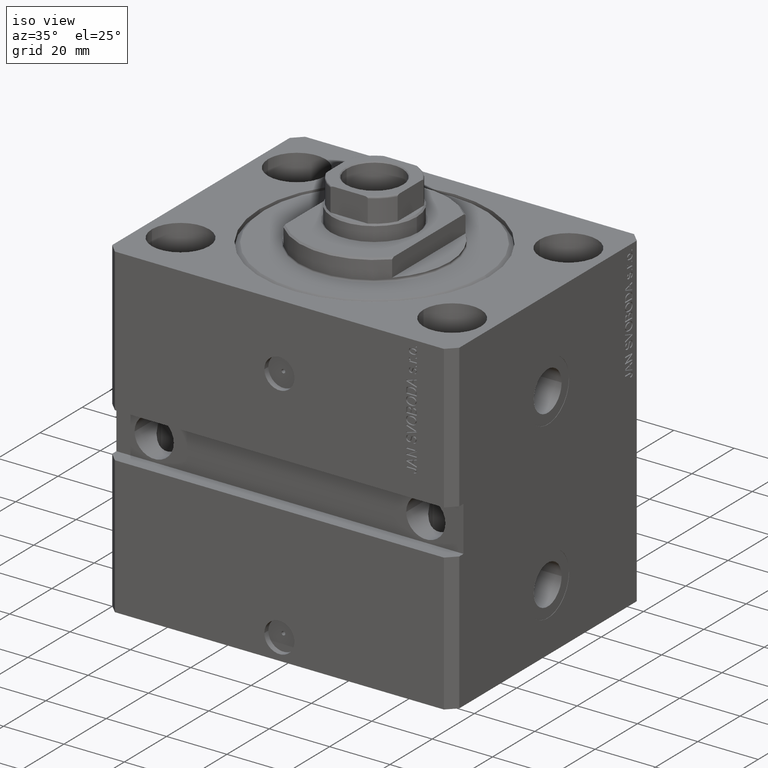
[diagram: clean part render]
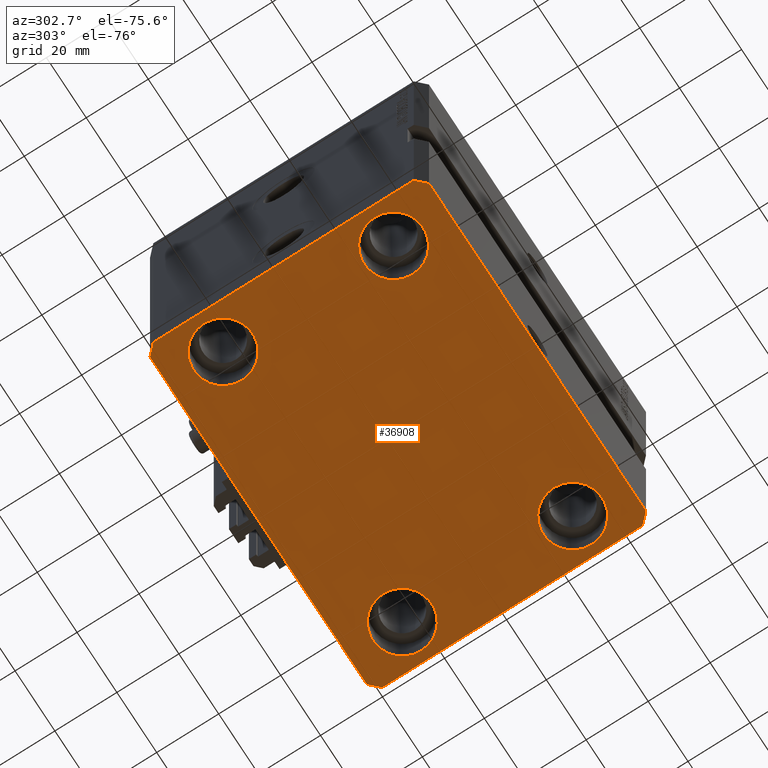
[diagram: tour spotlight — one face highlighted and labeled with its STEP entity id]
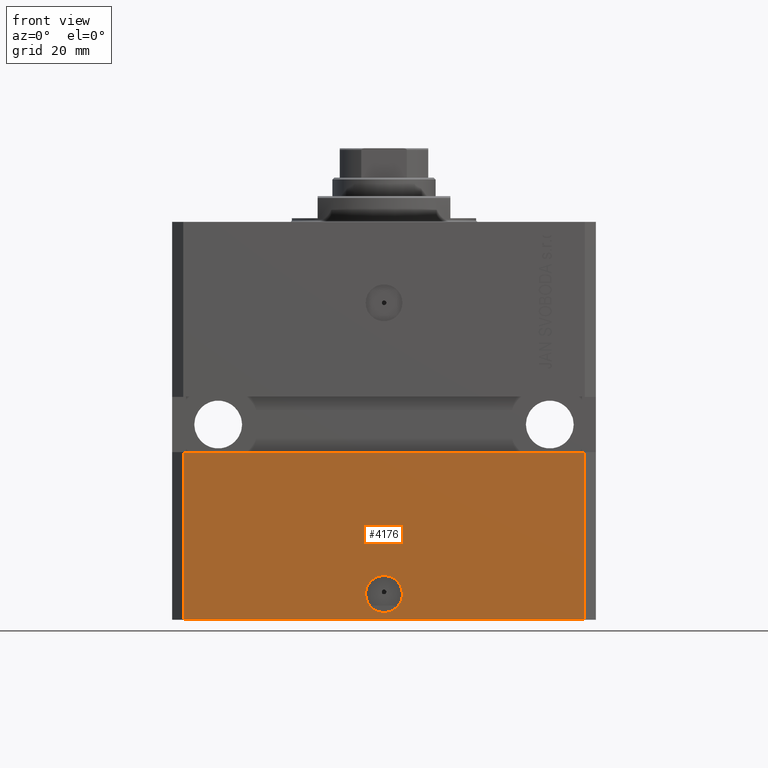
[diagram: tour spotlight — one face highlighted and labeled with its STEP entity id]
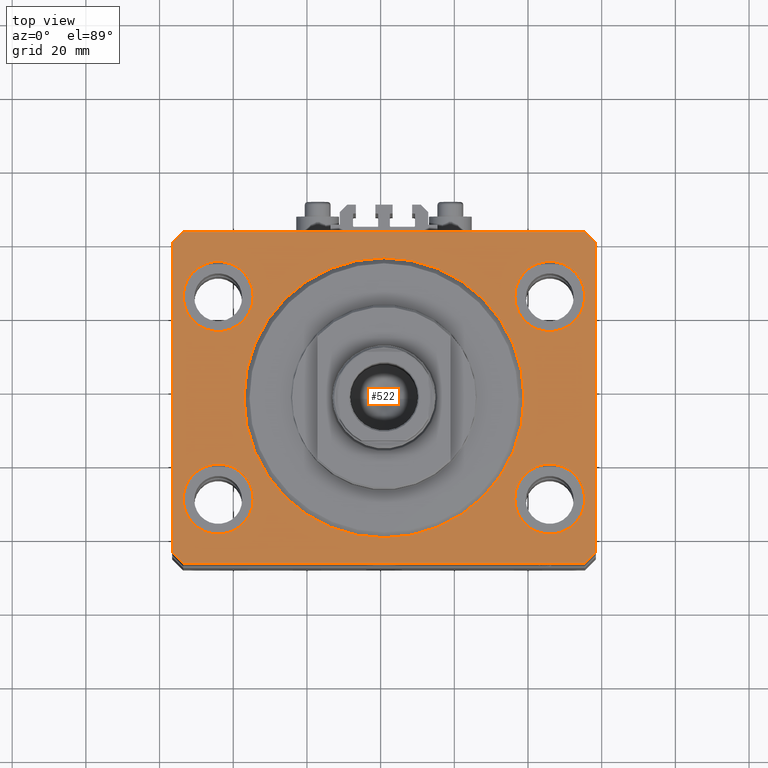
[diagram: tour spotlight — one face highlighted and labeled with its STEP entity id]
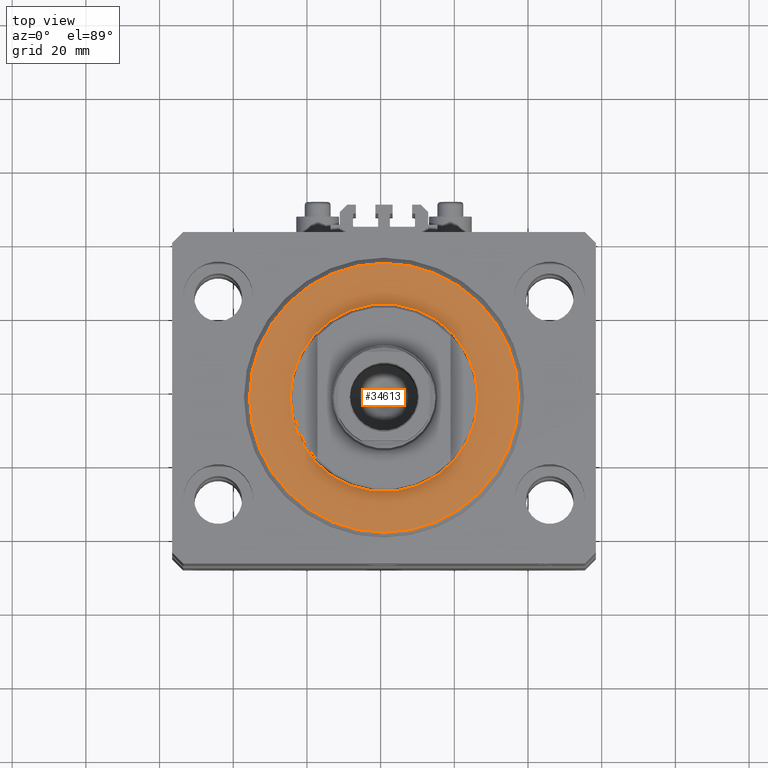
[diagram: tour spotlight — one face highlighted and labeled with its STEP entity id]
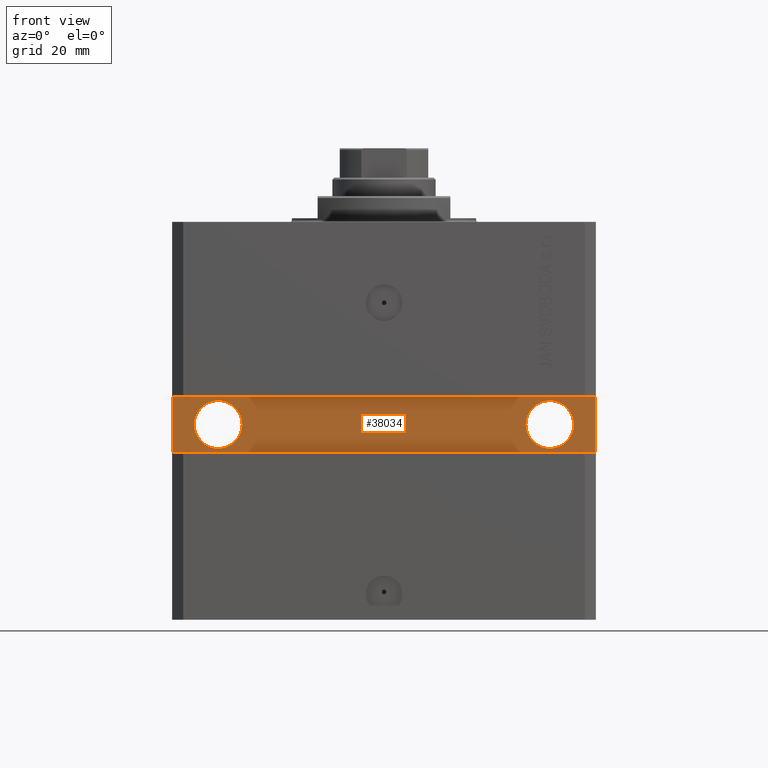
[diagram: tour spotlight — one face highlighted and labeled with its STEP entity id]
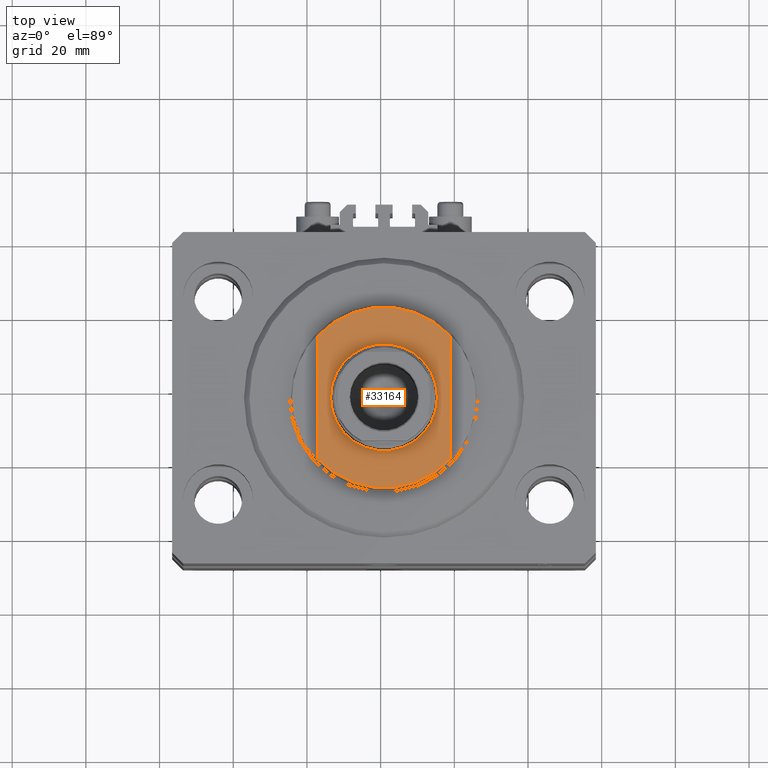
[diagram: tour spotlight — one face highlighted and labeled with its STEP entity id]
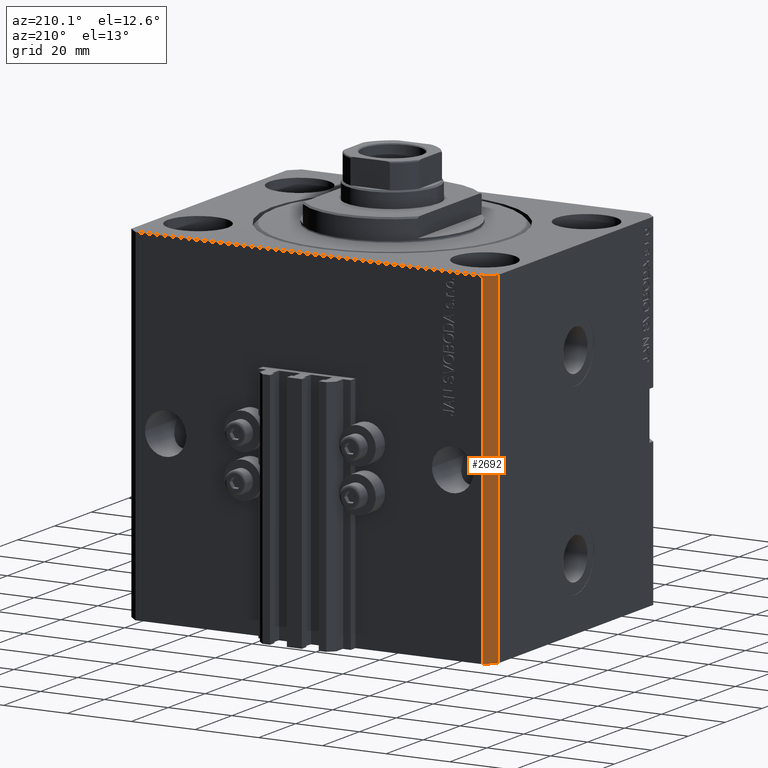
[diagram: tour spotlight — one face highlighted and labeled with its STEP entity id]
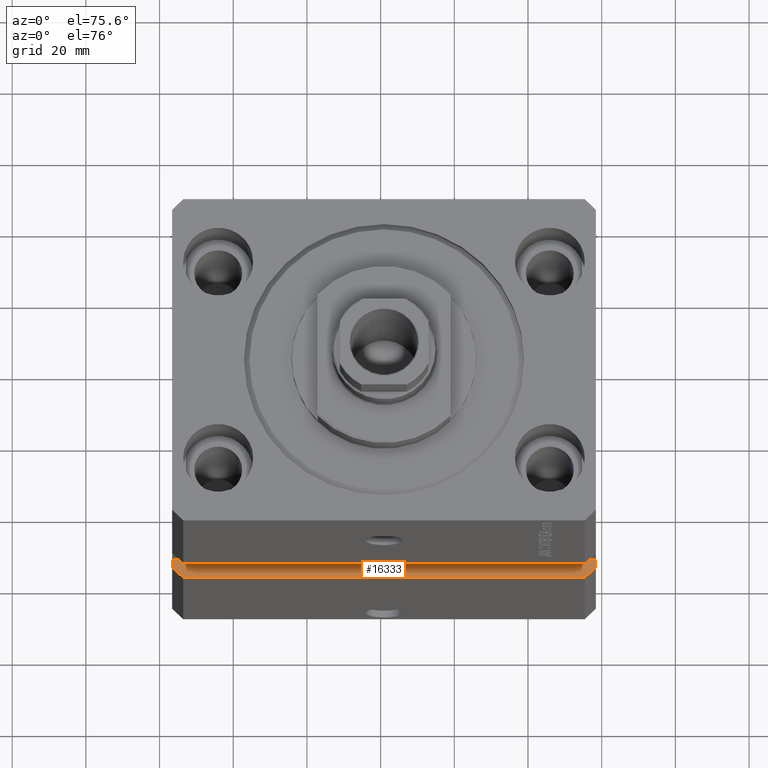
[diagram: tour spotlight — one face highlighted and labeled with its STEP entity id]
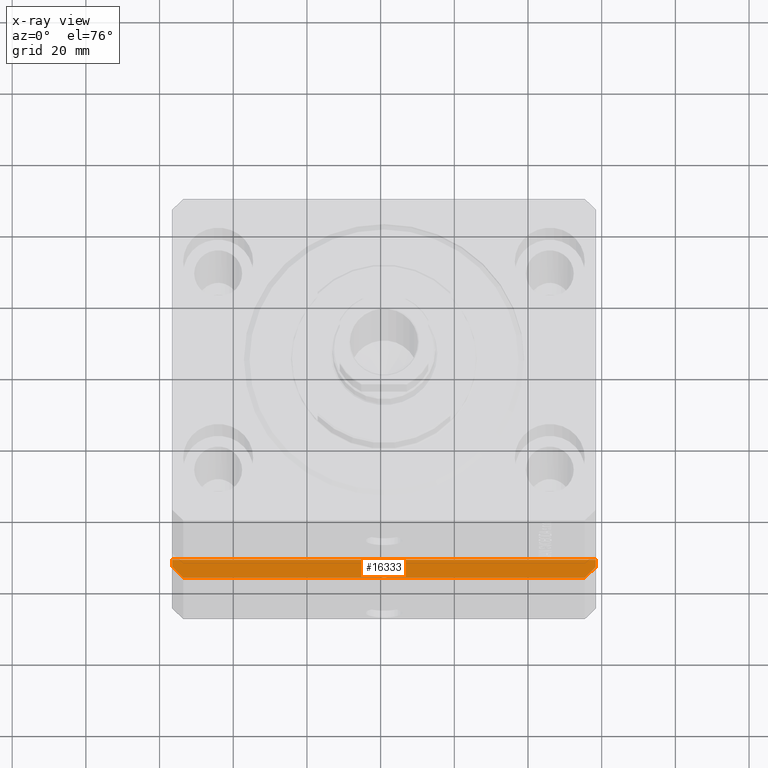
[diagram: x-ray of the same camera — body ghosted, this tour face saturated]
A machine part: a face-by-face anatomy tour. The part has 1123 B-rep faces; the first image is the clean iso view, then the 8 largest visible faces are spotlighted one at a time (largest first), each with its STEP entity span.

Face 1 — auxiliary view, entity #36908. In plain terms, the highlighted planar face has unit normal (0, 0, 1).
Definition (entity closure, byte-faithful):
#358 = VECTOR ( 'NONE', #16750, 1000.000000000000000 ) ;
#656 = LINE ( 'NONE', #7873, #20126 ) ;
#663 = CARTESIAN_POINT ( 'NONE',  ( -45.00000000000000000, -27.49999999999999645, -108.0000000000000000 ) ) ;
#935 = DIRECTION ( 'NONE',  ( -0.000000000000000000, -0.000000000000000000, 1.000000000000000000 ) ) ;
#2168 = CARTESIAN_POINT ( 'NONE',  ( 54.50000000000000000, 27.50000000000001776, -108.0000000000000000 ) ) ;
#2328 = CARTESIAN_POINT ( 'NONE',  ( 57.50000000000000711, -41.99999999999998579, -108.0000000000000000 ) ) ;
#2610 = CARTESIAN_POINT ( 'NONE',  ( 0.000000000000000000, 0.000000000000000000, -108.0000000000000000 ) ) ;
#2625 = EDGE_CURVE ( 'NONE', #11903, #31986, #41547, .T. ) ;
#2741 = LINE ( 'NONE', #44526, #20447 ) ;
#2826 = EDGE_CURVE ( 'NONE', #46505, #32514, #656, .T. ) ;
#2862 = FACE_OUTER_BOUND ( 'NONE', #7064, .T. ) ;
#3122 = DIRECTION ( 'NONE',  ( -0.000000000000000000, -0.000000000000000000, 1.000000000000000000 ) ) ;
#3204 = DIRECTION ( 'NONE',  ( -0.7071067811865483499, -0.7071067811865466846, 0.000000000000000000 ) ) ;
#3458 = ORIENTED_EDGE ( 'NONE', *, *, #9119, .T. ) ;
#3497 = DIRECTION ( 'NONE',  ( -0.7071067811865376918, 0.7071067811865574537, 0.000000000000000000 ) ) ;
#4487 = LINE ( 'NONE', #39539, #38608 ) ;
#4549 = CARTESIAN_POINT ( 'NONE',  ( 45.00000000000000000, -27.49999999999999645, -108.0000000000000000 ) ) ;
#4668 = CARTESIAN_POINT ( 'NONE',  ( -57.50000000000000711, -42.00000000000000711, -108.0000000000000000 ) ) ;
#5228 = CIRCLE ( 'NONE', #35416, 9.500000000000001776 ) ;
#5229 = CARTESIAN_POINT ( 'NONE',  ( 35.50000000000000000, -27.49999999999999645, -108.0000000000000000 ) ) ;
#5609 = CARTESIAN_POINT ( 'NONE',  ( 45.00000000000000000, 27.50000000000001776, -108.0000000000000000 ) ) ;
#5696 = VECTOR ( 'NONE', #17990, 1000.000000000000114 ) ;
#5895 = EDGE_CURVE ( 'NONE', #22153, #39718, #21448, .T. ) ;
#6258 = LINE ( 'NONE', #20976, #7057 ) ;
#7057 = VECTOR ( 'NONE', #43588, 1000.000000000000000 ) ;
#7064 = EDGE_LOOP ( 'NONE', ( #22331, #10845, #28032, #8652, #41761, #21823, #26002, #43721 ) ) ;
#7105 = FACE_BOUND ( 'NONE', #20083, .T. ) ;
#7349 = CARTESIAN_POINT ( 'NONE',  ( -45.00000000000000000, 27.50000000000000355, -108.0000000000000000 ) ) ;
#7873 = CARTESIAN_POINT ( 'NONE',  ( 54.50000000000058975, 45.00000000000002842, -108.0000000000000000 ) ) ;
#8652 = ORIENTED_EDGE ( 'NONE', *, *, #26316, .F. ) ;
#8862 = AXIS2_PLACEMENT_3D ( 'NONE', #2610, #21799, #36946 ) ;
#8893 = VECTOR ( 'NONE', #8994, 1000.000000000000000 ) ;
#8909 = EDGE_CURVE ( 'NONE', #40095, #11592, #4487, .T. ) ;
#8919 = DIRECTION ( 'NONE',  ( 1.000000000000000000, 0.000000000000000000, 0.000000000000000000 ) ) ;
#8994 = DIRECTION ( 'NONE',  ( 1.000000000000000000, 1.273191542001326317E-16, 0.000000000000000000 ) ) ;
#9119 = EDGE_CURVE ( 'NONE', #35168, #33995, #5228, .T. ) ;
#9240 = CARTESIAN_POINT ( 'NONE',  ( -54.50000000000000711, -45.00000000000000000, -108.0000000000000000 ) ) ;
#9383 = EDGE_LOOP ( 'NONE', ( #42927, #18831 ) ) ;
#9897 = ORIENTED_EDGE ( 'NONE', *, *, #21148, .T. ) ;
#10586 = FACE_BOUND ( 'NONE', #26195, .T. ) ;
#10845 = ORIENTED_EDGE ( 'NONE', *, *, #14788, .F. ) ;
#10996 = VECTOR ( 'NONE', #3204, 1000.000000000000000 ) ;
#11079 = CARTESIAN_POINT ( 'NONE',  ( -57.49999999999998579, 42.00000000000000711, -108.0000000000000000 ) ) ;
#11592 = VERTEX_POINT ( 'NONE', #22473 ) ;
#11903 = VERTEX_POINT ( 'NONE', #26813 ) ;
#12449 = DIRECTION ( 'NONE',  ( 6.443258625056715108E-15, 1.000000000000000000, 0.000000000000000000 ) ) ;
#14270 = EDGE_CURVE ( 'NONE', #33995, #35168, #22795, .T. ) ;
#14788 = EDGE_CURVE ( 'NONE', #11592, #46505, #2741, .T. ) ;
#14817 = AXIS2_PLACEMENT_3D ( 'NONE', #7349, #3122, #33482 ) ;
#15145 = LINE ( 'NONE', #25879, #10996 ) ;
#16070 = VERTEX_POINT ( 'NONE', #23038 ) ;
#16640 = CARTESIAN_POINT ( 'NONE',  ( 45.00000000000000000, -27.49999999999999645, -108.0000000000000000 ) ) ;
#16750 = DIRECTION ( 'NONE',  ( -2.478176394252581141E-16, -1.000000000000000000, 0.000000000000000000 ) ) ;
#17356 = ORIENTED_EDGE ( 'NONE', *, *, #27277, .T. ) ;
#17990 = DIRECTION ( 'NONE',  ( 0.7071067811865491270, -0.7071067811865459074, 0.000000000000000000 ) ) ;
#18831 = ORIENTED_EDGE ( 'NONE', *, *, #2625, .T. ) ;
#19869 = DIRECTION ( 'NONE',  ( 1.000000000000000000, 0.000000000000000000, 0.000000000000000000 ) ) ;
#20083 = EDGE_LOOP ( 'NONE', ( #9897, #17356 ) ) ;
#20126 = VECTOR ( 'NONE', #34509, 1000.000000000000000 ) ;
#20447 = VECTOR ( 'NONE', #3497, 999.9999999999998863 ) ;
#20801 = DIRECTION ( 'NONE',  ( -0.000000000000000000, -0.000000000000000000, 1.000000000000000000 ) ) ;
#20865 = DIRECTION ( 'NONE',  ( -0.000000000000000000, -0.000000000000000000, 1.000000000000000000 ) ) ;
#20972 = CARTESIAN_POINT ( 'NONE',  ( -57.49999999999998579, 42.00000000000000711, -108.0000000000000000 ) ) ;
#20976 = CARTESIAN_POINT ( 'NONE',  ( 54.50000000000000711, -44.99999999999998579, -108.0000000000000000 ) ) ;
#21148 = EDGE_CURVE ( 'NONE', #40748, #47189, #23839, .T. ) ;
#21448 = LINE ( 'NONE', #20972, #358 ) ;
#21547 = FACE_BOUND ( 'NONE', #26567, .T. ) ;
#21682 = AXIS2_PLACEMENT_3D ( 'NONE', #4549, #35392, #27950 ) ;
#21799 = DIRECTION ( 'NONE',  ( 0.000000000000000000, 0.000000000000000000, 1.000000000000000000 ) ) ;
#21823 = ORIENTED_EDGE ( 'NONE', *, *, #37768, .F. ) ;
#21944 = CARTESIAN_POINT ( 'NONE',  ( -54.50000000000000711, -45.00000000000000000, -108.0000000000000000 ) ) ;
#22153 = VERTEX_POINT ( 'NONE', #11079 ) ;
#22331 = ORIENTED_EDGE ( 'NONE', *, *, #2826, .F. ) ;
#22473 = CARTESIAN_POINT ( 'NONE',  ( 57.50000000000055422, 41.99999999999997868, -108.0000000000000000 ) ) ;
#22795 = CIRCLE ( 'NONE', #14817, 9.500000000000001776 ) ;
#23038 = CARTESIAN_POINT ( 'NONE',  ( -35.50000000000000000, -27.49999999999999645, -108.0000000000000000 ) ) ;
#23839 = CIRCLE ( 'NONE', #37307, 9.500000000000001776 ) ;
#23844 = DIRECTION ( 'NONE',  ( 1.000000000000000000, 0.000000000000000000, 0.000000000000000000 ) ) ;
#23963 = LINE ( 'NONE', #9240, #8893 ) ;
#24936 = VERTEX_POINT ( 'NONE', #42326 ) ;
#25282 = DIRECTION ( 'NONE',  ( -0.000000000000000000, -0.000000000000000000, 1.000000000000000000 ) ) ;
#25795 = FACE_BOUND ( 'NONE', #9383, .T. ) ;
#25879 = CARTESIAN_POINT ( 'NONE',  ( -54.49999999999999289, 45.00000000000000000, -108.0000000000000000 ) ) ;
#26002 = ORIENTED_EDGE ( 'NONE', *, *, #5895, .F. ) ;
#26195 = EDGE_LOOP ( 'NONE', ( #47186, #41980 ) ) ;
#26316 = EDGE_CURVE ( 'NONE', #24936, #40095, #6258, .T. ) ;
#26466 = AXIS2_PLACEMENT_3D ( 'NONE', #663, #28048, #23844 ) ;
#26567 = EDGE_LOOP ( 'NONE', ( #3458, #29518 ) ) ;
#26597 = AXIS2_PLACEMENT_3D ( 'NONE', #34144, #30408, #33403 ) ;
#26712 = EDGE_CURVE ( 'NONE', #32514, #22153, #15145, .T. ) ;
#26813 = CARTESIAN_POINT ( 'NONE',  ( 54.50000000000000000, -27.49999999999999645, -108.0000000000000000 ) ) ;
#27277 = EDGE_CURVE ( 'NONE', #47189, #40748, #42024, .T. ) ;
#27950 = DIRECTION ( 'NONE',  ( 1.000000000000000000, 0.000000000000000000, 0.000000000000000000 ) ) ;
#28032 = ORIENTED_EDGE ( 'NONE', *, *, #8909, .F. ) ;
#28048 = DIRECTION ( 'NONE',  ( -0.000000000000000000, -0.000000000000000000, 1.000000000000000000 ) ) ;
#28478 = CARTESIAN_POINT ( 'NONE',  ( 35.50000000000000000, 27.50000000000001776, -108.0000000000000000 ) ) ;
#28553 = AXIS2_PLACEMENT_3D ( 'NONE', #5609, #20801, #43656 ) ;
#29518 = ORIENTED_EDGE ( 'NONE', *, *, #14270, .T. ) ;
#29780 = CARTESIAN_POINT ( 'NONE',  ( 54.50000000000058975, 45.00000000000002842, -108.0000000000000000 ) ) ;
#30408 = DIRECTION ( 'NONE',  ( -0.000000000000000000, -0.000000000000000000, 1.000000000000000000 ) ) ;
#30453 = AXIS2_PLACEMENT_3D ( 'NONE', #16640, #20865, #8919 ) ;
#30957 = CARTESIAN_POINT ( 'NONE',  ( -54.50000000000000000, 27.50000000000000355, -108.0000000000000000 ) ) ;
#31986 = VERTEX_POINT ( 'NONE', #5229 ) ;
#32483 = DIRECTION ( 'NONE',  ( 1.000000000000000000, 0.000000000000000000, 0.000000000000000000 ) ) ;
#32514 = VERTEX_POINT ( 'NONE', #38639 ) ;
#33137 = CARTESIAN_POINT ( 'NONE',  ( -54.50000000000000000, -27.49999999999999645, -108.0000000000000000 ) ) ;
#33403 = DIRECTION ( 'NONE',  ( 1.000000000000000000, 0.000000000000000000, 0.000000000000000000 ) ) ;
#33482 = DIRECTION ( 'NONE',  ( 1.000000000000000000, 0.000000000000000000, 0.000000000000000000 ) ) ;
#33995 = VERTEX_POINT ( 'NONE', #36078 ) ;
#34144 = CARTESIAN_POINT ( 'NONE',  ( -45.00000000000000000, -27.49999999999999645, -108.0000000000000000 ) ) ;
#34509 = DIRECTION ( 'NONE',  ( -1.000000000000000000, -2.546383084002639322E-16, 0.000000000000000000 ) ) ;
#34662 = VERTEX_POINT ( 'NONE', #21944 ) ;
#35168 = VERTEX_POINT ( 'NONE', #30957 ) ;
#35392 = DIRECTION ( 'NONE',  ( -0.000000000000000000, -0.000000000000000000, 1.000000000000000000 ) ) ;
#35416 = AXIS2_PLACEMENT_3D ( 'NONE', #42483, #935, #19869 ) ;
#35430 = LINE ( 'NONE', #40349, #5696 ) ;
#35984 = CIRCLE ( 'NONE', #26466, 9.500000000000001776 ) ;
#36078 = CARTESIAN_POINT ( 'NONE',  ( -35.50000000000000000, 27.50000000000000355, -108.0000000000000000 ) ) ;
#36749 = CIRCLE ( 'NONE', #21682, 9.500000000000001776 ) ;
#36908 = ADVANCED_FACE ( 'NONE', ( #10586, #25795, #7105, #21547, #2862 ), #37450, .F. ) ;
#36946 = DIRECTION ( 'NONE',  ( 1.000000000000000000, 0.000000000000000000, -0.000000000000000000 ) ) ;
#37307 = AXIS2_PLACEMENT_3D ( 'NONE', #47392, #25282, #32483 ) ;
#37450 = PLANE ( 'NONE',  #8862 ) ;
#37768 = EDGE_CURVE ( 'NONE', #39718, #34662, #35430, .T. ) ;
#38141 = EDGE_CURVE ( 'NONE', #34662, #24936, #23963, .T. ) ;
#38608 = VECTOR ( 'NONE', #12449, 1000.000000000000000 ) ;
#38639 = CARTESIAN_POINT ( 'NONE',  ( -54.49999999999999289, 45.00000000000000000, -108.0000000000000000 ) ) ;
#39539 = CARTESIAN_POINT ( 'NONE',  ( 57.50000000000000711, -41.99999999999998579, -108.0000000000000000 ) ) ;
#39718 = VERTEX_POINT ( 'NONE', #4668 ) ;
#40072 = CIRCLE ( 'NONE', #26597, 9.500000000000001776 ) ;
#40095 = VERTEX_POINT ( 'NONE', #2328 ) ;
#40299 = EDGE_CURVE ( 'NONE', #31986, #11903, #36749, .T. ) ;
#40349 = CARTESIAN_POINT ( 'NONE',  ( -57.50000000000000711, -42.00000000000000711, -108.0000000000000000 ) ) ;
#40520 = EDGE_CURVE ( 'NONE', #16070, #47056, #35984, .T. ) ;
#40748 = VERTEX_POINT ( 'NONE', #28478 ) ;
#41547 = CIRCLE ( 'NONE', #30453, 9.500000000000001776 ) ;
#41761 = ORIENTED_EDGE ( 'NONE', *, *, #38141, .F. ) ;
#41980 = ORIENTED_EDGE ( 'NONE', *, *, #40520, .T. ) ;
#42024 = CIRCLE ( 'NONE', #28553, 9.500000000000001776 ) ;
#42326 = CARTESIAN_POINT ( 'NONE',  ( 54.50000000000000711, -44.99999999999998579, -108.0000000000000000 ) ) ;
#42483 = CARTESIAN_POINT ( 'NONE',  ( -45.00000000000000000, 27.50000000000000355, -108.0000000000000000 ) ) ;
#42927 = ORIENTED_EDGE ( 'NONE', *, *, #40299, .T. ) ;
#43588 = DIRECTION ( 'NONE',  ( 0.7071067811865483499, 0.7071067811865466846, 0.000000000000000000 ) ) ;
#43656 = DIRECTION ( 'NONE',  ( 1.000000000000000000, 0.000000000000000000, 0.000000000000000000 ) ) ;
#43721 = ORIENTED_EDGE ( 'NONE', *, *, #26712, .F. ) ;
#44526 = CARTESIAN_POINT ( 'NONE',  ( 57.50000000000055422, 41.99999999999997868, -108.0000000000000000 ) ) ;
#46505 = VERTEX_POINT ( 'NONE', #29780 ) ;
#47056 = VERTEX_POINT ( 'NONE', #33137 ) ;
#47186 = ORIENTED_EDGE ( 'NONE', *, *, #48011, .T. ) ;
#47189 = VERTEX_POINT ( 'NONE', #2168 ) ;
#47392 = CARTESIAN_POINT ( 'NONE',  ( 45.00000000000000000, 27.50000000000001776, -108.0000000000000000 ) ) ;
#48011 = EDGE_CURVE ( 'NONE', #47056, #16070, #40072, .T. ) ;

Face 2 — front view, entity #4176. In plain terms, the highlighted planar face has unit normal (0, -1, 0).
Definition (entity closure, byte-faithful):
#2139 = VECTOR ( 'NONE', #24492, 1000.000000000000000 ) ;
#3583 = VECTOR ( 'NONE', #45058, 1000.000000000000000 ) ;
#4176 = ADVANCED_FACE ( 'NONE', ( #12870, #30868 ), #42291, .T. ) ;
#4806 = VERTEX_POINT ( 'NONE', #34913 ) ;
#6519 = EDGE_LOOP ( 'NONE', ( #25581, #34971, #16861, #27310 ) ) ;
#6565 = ORIENTED_EDGE ( 'NONE', *, *, #47234, .F. ) ;
#7966 = CARTESIAN_POINT ( 'NONE',  ( -54.50000000000000711, -45.00000000000000000, -108.0000000000000000 ) ) ;
#8893 = VECTOR ( 'NONE', #8994, 1000.000000000000000 ) ;
#8994 = DIRECTION ( 'NONE',  ( 1.000000000000000000, 1.273191542001326317E-16, 0.000000000000000000 ) ) ;
#9240 = CARTESIAN_POINT ( 'NONE',  ( -54.50000000000000711, -45.00000000000000000, -108.0000000000000000 ) ) ;
#9642 = DIRECTION ( 'NONE',  ( 1.000000000000000000, 0.000000000000000000, 0.000000000000000000 ) ) ;
#12236 = AXIS2_PLACEMENT_3D ( 'NONE', #7966, #46934, #20598 ) ;
#12530 = CARTESIAN_POINT ( 'NONE',  ( -57.50000000000000711, -45.00000000000000000, -62.50000000000000000 ) ) ;
#12870 = FACE_BOUND ( 'NONE', #36823, .T. ) ;
#14281 = VERTEX_POINT ( 'NONE', #45147 ) ;
#14645 = VERTEX_POINT ( 'NONE', #38372 ) ;
#15052 = AXIS2_PLACEMENT_3D ( 'NONE', #30988, #35693, #16555 ) ;
#16555 = DIRECTION ( 'NONE',  ( 1.000000000000000000, 0.000000000000000000, 0.000000000000000000 ) ) ;
#16861 = ORIENTED_EDGE ( 'NONE', *, *, #38141, .T. ) ;
#18365 = DIRECTION ( 'NONE',  ( 0.000000000000000000, 0.000000000000000000, 1.000000000000000000 ) ) ;
#20202 = CIRCLE ( 'NONE', #47952, 5.000000000000006217 ) ;
#20598 = DIRECTION ( 'NONE',  ( 1.000000000000000000, 1.273191542001326317E-16, 0.000000000000000000 ) ) ;
#21944 = CARTESIAN_POINT ( 'NONE',  ( -54.50000000000000711, -45.00000000000000000, -108.0000000000000000 ) ) ;
#23824 = CIRCLE ( 'NONE', #15052, 5.000000000000006217 ) ;
#23865 = EDGE_CURVE ( 'NONE', #14645, #14281, #32170, .T. ) ;
#23963 = LINE ( 'NONE', #9240, #8893 ) ;
#24492 = DIRECTION ( 'NONE',  ( 1.000000000000000000, 1.206764157201257045E-16, 0.000000000000000000 ) ) ;
#24936 = VERTEX_POINT ( 'NONE', #42326 ) ;
#25577 = DIRECTION ( 'NONE',  ( 1.176083712526788232E-16, -1.000000000000000000, 0.000000000000000000 ) ) ;
#25581 = ORIENTED_EDGE ( 'NONE', *, *, #23865, .F. ) ;
#26995 = VECTOR ( 'NONE', #18365, 1000.000000000000000 ) ;
#27310 = ORIENTED_EDGE ( 'NONE', *, *, #49140, .T. ) ;
#27953 = VERTEX_POINT ( 'NONE', #47441 ) ;
#28681 = EDGE_CURVE ( 'NONE', #34662, #14645, #48920, .T. ) ;
#29339 = EDGE_CURVE ( 'NONE', #4806, #27953, #23824, .T. ) ;
#29547 = CARTESIAN_POINT ( 'NONE',  ( 5.729361939005967538E-15, -44.99999999999999289, -100.9999999999999858 ) ) ;
#29670 = LINE ( 'NONE', #40331, #3583 ) ;
#30868 = FACE_OUTER_BOUND ( 'NONE', #6519, .T. ) ;
#30988 = CARTESIAN_POINT ( 'NONE',  ( 5.729361939005967538E-15, -44.99999999999999289, -100.9999999999999858 ) ) ;
#32170 = LINE ( 'NONE', #12530, #2139 ) ;
#34241 = ORIENTED_EDGE ( 'NONE', *, *, #29339, .F. ) ;
#34662 = VERTEX_POINT ( 'NONE', #21944 ) ;
#34913 = CARTESIAN_POINT ( 'NONE',  ( -5.000000000000000000, -44.99999999999999289, -100.9999999999999858 ) ) ;
#34971 = ORIENTED_EDGE ( 'NONE', *, *, #28681, .F. ) ;
#35693 = DIRECTION ( 'NONE',  ( 1.176083712526788232E-16, -1.000000000000000000, 0.000000000000000000 ) ) ;
#36823 = EDGE_LOOP ( 'NONE', ( #6565, #34241 ) ) ;
#38141 = EDGE_CURVE ( 'NONE', #34662, #24936, #23963, .T. ) ;
#38372 = CARTESIAN_POINT ( 'NONE',  ( -54.50000000000000711, -45.00000000000000000, -62.50000000000000000 ) ) ;
#40331 = CARTESIAN_POINT ( 'NONE',  ( 54.50000000000000711, -44.99999999999998579, -108.0000000000000000 ) ) ;
#42291 = PLANE ( 'NONE',  #12236 ) ;
#42326 = CARTESIAN_POINT ( 'NONE',  ( 54.50000000000000711, -44.99999999999998579, -108.0000000000000000 ) ) ;
#44937 = CARTESIAN_POINT ( 'NONE',  ( -54.50000000000000711, -45.00000000000000000, -108.0000000000000000 ) ) ;
#45058 = DIRECTION ( 'NONE',  ( 0.000000000000000000, 0.000000000000000000, 1.000000000000000000 ) ) ;
#45147 = CARTESIAN_POINT ( 'NONE',  ( 54.49999999999997868, -44.99999999999998579, -62.50000000000000000 ) ) ;
#46934 = DIRECTION ( 'NONE',  ( 1.273191542001326317E-16, -1.000000000000000000, 0.000000000000000000 ) ) ;
#47234 = EDGE_CURVE ( 'NONE', #27953, #4806, #20202, .T. ) ;
#47441 = CARTESIAN_POINT ( 'NONE',  ( 5.000000000000012434, -44.99999999999999289, -100.9999999999999858 ) ) ;
#47952 = AXIS2_PLACEMENT_3D ( 'NONE', #29547, #25577, #9642 ) ;
#48920 = LINE ( 'NONE', #44937, #26995 ) ;
#49140 = EDGE_CURVE ( 'NONE', #24936, #14281, #29670, .T. ) ;

Face 3 — top view, entity #522. In plain terms, the highlighted planar face has unit normal (0, 0, 1).
Definition (entity closure, byte-faithful):
#35 = CARTESIAN_POINT ( 'NONE',  ( -45.00000000000000000, -27.49999999999999645, 0.000000000000000000 ) ) ;
#201 = AXIS2_PLACEMENT_3D ( 'NONE', #7631, #33523, #34260 ) ;
#522 = ADVANCED_FACE ( 'NONE', ( #35974, #25534, #47639, #21540, #39936, #32976 ), #40411, .T. ) ;
#654 = CARTESIAN_POINT ( 'NONE',  ( -54.49999999999999289, 45.00000000000000000, 0.000000000000000000 ) ) ;
#832 = LINE ( 'NONE', #4066, #47414 ) ;
#971 = VERTEX_POINT ( 'NONE', #14501 ) ;
#1199 = DIRECTION ( 'NONE',  ( 0.000000000000000000, 0.000000000000000000, 1.000000000000000000 ) ) ;
#1389 = LINE ( 'NONE', #654, #39243 ) ;
#1715 = VECTOR ( 'NONE', #46128, 999.9999999999998863 ) ;
#1768 = EDGE_CURVE ( 'NONE', #37778, #30025, #32781, .T. ) ;
#1872 = CARTESIAN_POINT ( 'NONE',  ( -54.50000000000000711, -45.00000000000000000, 0.000000000000000000 ) ) ;
#1943 = ORIENTED_EDGE ( 'NONE', *, *, #36343, .F. ) ;
#2482 = DIRECTION ( 'NONE',  ( 0.000000000000000000, 0.000000000000000000, 1.000000000000000000 ) ) ;
#2776 = DIRECTION ( 'NONE',  ( 0.000000000000000000, 0.000000000000000000, 1.000000000000000000 ) ) ;
#2939 = LINE ( 'NONE', #36770, #5996 ) ;
#3069 = AXIS2_PLACEMENT_3D ( 'NONE', #38883, #47312, #31186 ) ;
#3168 = CARTESIAN_POINT ( 'NONE',  ( 57.50000000000055422, 41.99999999999997868, 0.000000000000000000 ) ) ;
#3347 = DIRECTION ( 'NONE',  ( 1.000000000000000000, 0.000000000000000000, 0.000000000000000000 ) ) ;
#3823 = DIRECTION ( 'NONE',  ( 1.000000000000000000, 1.273191542001326317E-16, 0.000000000000000000 ) ) ;
#4010 = CARTESIAN_POINT ( 'NONE',  ( -38.00000000000000000, 4.653657836759941941E-15, 0.000000000000000000 ) ) ;
#4066 = CARTESIAN_POINT ( 'NONE',  ( -54.50000000000000711, -45.00000000000000000, 0.000000000000000000 ) ) ;
#4129 = CARTESIAN_POINT ( 'NONE',  ( 54.50000000000000711, -44.99999999999998579, 0.000000000000000000 ) ) ;
#4388 = CARTESIAN_POINT ( 'NONE',  ( 45.00000000000000000, 27.50000000000001776, 0.000000000000000000 ) ) ;
#4490 = VERTEX_POINT ( 'NONE', #13540 ) ;
#4922 = VERTEX_POINT ( 'NONE', #25182 ) ;
#5795 = CARTESIAN_POINT ( 'NONE',  ( -57.50000000000000711, -42.00000000000000711, 0.000000000000000000 ) ) ;
#5839 = VERTEX_POINT ( 'NONE', #19999 ) ;
#5996 = VECTOR ( 'NONE', #17884, 1000.000000000000000 ) ;
#7024 = DIRECTION ( 'NONE',  ( 0.000000000000000000, 0.000000000000000000, 1.000000000000000000 ) ) ;
#7050 = ORIENTED_EDGE ( 'NONE', *, *, #42740, .T. ) ;
#7085 = EDGE_CURVE ( 'NONE', #33848, #9282, #14673, .T. ) ;
#7146 = ORIENTED_EDGE ( 'NONE', *, *, #19235, .T. ) ;
#7631 = CARTESIAN_POINT ( 'NONE',  ( 45.00000000000000000, -27.49999999999999645, 0.000000000000000000 ) ) ;
#7839 = AXIS2_PLACEMENT_3D ( 'NONE', #35, #2776, #18975 ) ;
#8612 = EDGE_LOOP ( 'NONE', ( #1943, #37219 ) ) ;
#8958 = EDGE_CURVE ( 'NONE', #31166, #13113, #2939, .T. ) ;
#9159 = ORIENTED_EDGE ( 'NONE', *, *, #34217, .F. ) ;
#9282 = VERTEX_POINT ( 'NONE', #18584 ) ;
#9312 = AXIS2_PLACEMENT_3D ( 'NONE', #41096, #7024, #37371 ) ;
#9444 = VECTOR ( 'NONE', #41699, 1000.000000000000000 ) ;
#9999 = DIRECTION ( 'NONE',  ( 0.7071067811865491270, -0.7071067811865459074, 0.000000000000000000 ) ) ;
#10098 = VERTEX_POINT ( 'NONE', #45291 ) ;
#10194 = CARTESIAN_POINT ( 'NONE',  ( 35.50000000000000000, 27.50000000000001776, 0.000000000000000000 ) ) ;
#10874 = ORIENTED_EDGE ( 'NONE', *, *, #8958, .T. ) ;
#10971 = EDGE_CURVE ( 'NONE', #971, #25952, #25999, .T. ) ;
#11194 = CIRCLE ( 'NONE', #12024, 9.500000000000001776 ) ;
#12024 = AXIS2_PLACEMENT_3D ( 'NONE', #24455, #2482, #13456 ) ;
#13113 = VERTEX_POINT ( 'NONE', #35791 ) ;
#13456 = DIRECTION ( 'NONE',  ( 1.000000000000000000, 0.000000000000000000, 0.000000000000000000 ) ) ;
#13540 = CARTESIAN_POINT ( 'NONE',  ( -54.50000000000000000, -27.49999999999999645, 0.000000000000000000 ) ) ;
#13735 = VERTEX_POINT ( 'NONE', #24154 ) ;
#14501 = CARTESIAN_POINT ( 'NONE',  ( 54.50000000000000000, 27.50000000000001776, 0.000000000000000000 ) ) ;
#14673 = CIRCLE ( 'NONE', #23449, 38.00000000000000000 ) ;
#14839 = ORIENTED_EDGE ( 'NONE', *, *, #19346, .F. ) ;
#15053 = DIRECTION ( 'NONE',  ( 6.443258625056715108E-15, 1.000000000000000000, 0.000000000000000000 ) ) ;
#15136 = EDGE_CURVE ( 'NONE', #9282, #33848, #43452, .T. ) ;
#15406 = EDGE_CURVE ( 'NONE', #25952, #971, #48196, .T. ) ;
#15535 = CARTESIAN_POINT ( 'NONE',  ( 57.50000000000000711, -41.99999999999998579, 0.000000000000000000 ) ) ;
#16881 = DIRECTION ( 'NONE',  ( 1.000000000000000000, 0.000000000000000000, 0.000000000000000000 ) ) ;
#17730 = ORIENTED_EDGE ( 'NONE', *, *, #18671, .T. ) ;
#17761 = LINE ( 'NONE', #28969, #45377 ) ;
#17884 = DIRECTION ( 'NONE',  ( -1.000000000000000000, -2.546383084002639322E-16, 0.000000000000000000 ) ) ;
#18057 = DIRECTION ( 'NONE',  ( 0.000000000000000000, 0.000000000000000000, 1.000000000000000000 ) ) ;
#18584 = CARTESIAN_POINT ( 'NONE',  ( 38.00000000000000000, 0.000000000000000000, 0.000000000000000000 ) ) ;
#18671 = EDGE_CURVE ( 'NONE', #32391, #5839, #34004, .T. ) ;
#18975 = DIRECTION ( 'NONE',  ( 1.000000000000000000, 0.000000000000000000, 0.000000000000000000 ) ) ;
#19039 = LINE ( 'NONE', #15535, #27346 ) ;
#19074 = EDGE_LOOP ( 'NONE', ( #10874, #46963, #20551, #7146, #44294, #17730, #7050, #33963 ) ) ;
#19235 = EDGE_CURVE ( 'NONE', #10098, #47604, #36143, .T. ) ;
#19297 = LINE ( 'NONE', #31228, #1715 ) ;
#19346 = EDGE_CURVE ( 'NONE', #4490, #4922, #32465, .T. ) ;
#19999 = CARTESIAN_POINT ( 'NONE',  ( 57.50000000000000711, -41.99999999999998579, 0.000000000000000000 ) ) ;
#20551 = ORIENTED_EDGE ( 'NONE', *, *, #37227, .T. ) ;
#21514 = CARTESIAN_POINT ( 'NONE',  ( 54.50000000000000711, -44.99999999999998579, 0.000000000000000000 ) ) ;
#21540 = FACE_BOUND ( 'NONE', #38380, .T. ) ;
#23449 = AXIS2_PLACEMENT_3D ( 'NONE', #40289, #47288, #44271 ) ;
#23721 = EDGE_CURVE ( 'NONE', #47604, #32391, #832, .T. ) ;
#23833 = DIRECTION ( 'NONE',  ( 0.000000000000000000, 0.000000000000000000, 1.000000000000000000 ) ) ;
#24154 = CARTESIAN_POINT ( 'NONE',  ( 35.50000000000000000, -27.49999999999999645, 0.000000000000000000 ) ) ;
#24455 = CARTESIAN_POINT ( 'NONE',  ( 45.00000000000000000, -27.49999999999999645, 0.000000000000000000 ) ) ;
#25182 = CARTESIAN_POINT ( 'NONE',  ( -35.50000000000000000, -27.49999999999999645, 0.000000000000000000 ) ) ;
#25460 = CIRCLE ( 'NONE', #31806, 9.500000000000001776 ) ;
#25534 = FACE_BOUND ( 'NONE', #8612, .T. ) ;
#25952 = VERTEX_POINT ( 'NONE', #10194 ) ;
#25999 = CIRCLE ( 'NONE', #35486, 9.500000000000001776 ) ;
#26167 = VECTOR ( 'NONE', #9999, 1000.000000000000114 ) ;
#26512 = DIRECTION ( 'NONE',  ( 0.000000000000000000, 0.000000000000000000, 1.000000000000000000 ) ) ;
#27346 = VECTOR ( 'NONE', #15053, 1000.000000000000000 ) ;
#28097 = DIRECTION ( 'NONE',  ( 1.000000000000000000, 0.000000000000000000, 0.000000000000000000 ) ) ;
#28969 = CARTESIAN_POINT ( 'NONE',  ( -57.49999999999998579, 42.00000000000000711, 0.000000000000000000 ) ) ;
#29959 = ORIENTED_EDGE ( 'NONE', *, *, #15406, .F. ) ;
#30025 = VERTEX_POINT ( 'NONE', #32747 ) ;
#30424 = CIRCLE ( 'NONE', #201, 9.500000000000001776 ) ;
#30741 = ORIENTED_EDGE ( 'NONE', *, *, #31327, .F. ) ;
#31166 = VERTEX_POINT ( 'NONE', #47184 ) ;
#31186 = DIRECTION ( 'NONE',  ( 1.000000000000000000, 0.000000000000000000, 0.000000000000000000 ) ) ;
#31195 = CARTESIAN_POINT ( 'NONE',  ( -57.49999999999998579, 42.00000000000000711, 0.000000000000000000 ) ) ;
#31228 = CARTESIAN_POINT ( 'NONE',  ( 57.50000000000055422, 41.99999999999997868, 0.000000000000000000 ) ) ;
#31327 = EDGE_CURVE ( 'NONE', #30025, #37778, #49144, .T. ) ;
#31553 = DIRECTION ( 'NONE',  ( 0.000000000000000000, 0.000000000000000000, 1.000000000000000000 ) ) ;
#31806 = AXIS2_PLACEMENT_3D ( 'NONE', #42747, #1199, #28097 ) ;
#31998 = DIRECTION ( 'NONE',  ( -0.7071067811865483499, -0.7071067811865466846, 0.000000000000000000 ) ) ;
#32391 = VERTEX_POINT ( 'NONE', #21514 ) ;
#32465 = CIRCLE ( 'NONE', #7839, 9.500000000000001776 ) ;
#32541 = ORIENTED_EDGE ( 'NONE', *, *, #10971, .F. ) ;
#32747 = CARTESIAN_POINT ( 'NONE',  ( -54.50000000000000000, 27.50000000000000355, 0.000000000000000000 ) ) ;
#32781 = CIRCLE ( 'NONE', #33566, 9.500000000000001776 ) ;
#32976 = FACE_OUTER_BOUND ( 'NONE', #19074, .T. ) ;
#33523 = DIRECTION ( 'NONE',  ( 0.000000000000000000, 0.000000000000000000, 1.000000000000000000 ) ) ;
#33566 = AXIS2_PLACEMENT_3D ( 'NONE', #39968, #31553, #16881 ) ;
#33848 = VERTEX_POINT ( 'NONE', #4010 ) ;
#33923 = AXIS2_PLACEMENT_3D ( 'NONE', #45125, #26512, #3347 ) ;
#33963 = ORIENTED_EDGE ( 'NONE', *, *, #37013, .T. ) ;
#34004 = LINE ( 'NONE', #4129, #9444 ) ;
#34217 = EDGE_CURVE ( 'NONE', #4922, #4490, #25460, .T. ) ;
#34256 = EDGE_LOOP ( 'NONE', ( #40435, #39440 ) ) ;
#34260 = DIRECTION ( 'NONE',  ( 1.000000000000000000, 0.000000000000000000, 0.000000000000000000 ) ) ;
#34748 = DIRECTION ( 'NONE',  ( 1.000000000000000000, 0.000000000000000000, 0.000000000000000000 ) ) ;
#35486 = AXIS2_PLACEMENT_3D ( 'NONE', #4388, #23833, #34748 ) ;
#35791 = CARTESIAN_POINT ( 'NONE',  ( -54.49999999999999289, 45.00000000000000000, 0.000000000000000000 ) ) ;
#35974 = FACE_BOUND ( 'NONE', #48577, .T. ) ;
#36143 = LINE ( 'NONE', #5795, #26167 ) ;
#36343 = EDGE_CURVE ( 'NONE', #42920, #13735, #11194, .T. ) ;
#36770 = CARTESIAN_POINT ( 'NONE',  ( 54.50000000000058975, 45.00000000000002842, 0.000000000000000000 ) ) ;
#37013 = EDGE_CURVE ( 'NONE', #37704, #31166, #19297, .T. ) ;
#37121 = CARTESIAN_POINT ( 'NONE',  ( 54.50000000000000000, -27.49999999999999645, 0.000000000000000000 ) ) ;
#37219 = ORIENTED_EDGE ( 'NONE', *, *, #40386, .F. ) ;
#37227 = EDGE_CURVE ( 'NONE', #46885, #10098, #17761, .T. ) ;
#37371 = DIRECTION ( 'NONE',  ( 1.000000000000000000, 0.000000000000000000, 0.000000000000000000 ) ) ;
#37380 = CARTESIAN_POINT ( 'NONE',  ( -35.50000000000000000, 27.50000000000000355, 0.000000000000000000 ) ) ;
#37704 = VERTEX_POINT ( 'NONE', #3168 ) ;
#37778 = VERTEX_POINT ( 'NONE', #37380 ) ;
#38380 = EDGE_LOOP ( 'NONE', ( #43646, #30741 ) ) ;
#38883 = CARTESIAN_POINT ( 'NONE',  ( -45.00000000000000000, 27.50000000000000355, 0.000000000000000000 ) ) ;
#39243 = VECTOR ( 'NONE', #31998, 1000.000000000000000 ) ;
#39440 = ORIENTED_EDGE ( 'NONE', *, *, #7085, .F. ) ;
#39936 = FACE_BOUND ( 'NONE', #34256, .T. ) ;
#39968 = CARTESIAN_POINT ( 'NONE',  ( -45.00000000000000000, 27.50000000000000355, 0.000000000000000000 ) ) ;
#39978 = AXIS2_PLACEMENT_3D ( 'NONE', #40662, #18057, #47162 ) ;
#40289 = CARTESIAN_POINT ( 'NONE',  ( 0.000000000000000000, 0.000000000000000000, 0.000000000000000000 ) ) ;
#40362 = DIRECTION ( 'NONE',  ( -2.478176394252581141E-16, -1.000000000000000000, 0.000000000000000000 ) ) ;
#40386 = EDGE_CURVE ( 'NONE', #13735, #42920, #30424, .T. ) ;
#40411 = PLANE ( 'NONE',  #39978 ) ;
#40435 = ORIENTED_EDGE ( 'NONE', *, *, #15136, .F. ) ;
#40662 = CARTESIAN_POINT ( 'NONE',  ( 0.000000000000000000, 0.000000000000000000, 0.000000000000000000 ) ) ;
#41096 = CARTESIAN_POINT ( 'NONE',  ( 45.00000000000000000, 27.50000000000001776, 0.000000000000000000 ) ) ;
#41699 = DIRECTION ( 'NONE',  ( 0.7071067811865483499, 0.7071067811865466846, 0.000000000000000000 ) ) ;
#42740 = EDGE_CURVE ( 'NONE', #5839, #37704, #19039, .T. ) ;
#42747 = CARTESIAN_POINT ( 'NONE',  ( -45.00000000000000000, -27.49999999999999645, 0.000000000000000000 ) ) ;
#42920 = VERTEX_POINT ( 'NONE', #37121 ) ;
#43452 = CIRCLE ( 'NONE', #33923, 38.00000000000000000 ) ;
#43646 = ORIENTED_EDGE ( 'NONE', *, *, #1768, .F. ) ;
#44271 = DIRECTION ( 'NONE',  ( 1.000000000000000000, 0.000000000000000000, 0.000000000000000000 ) ) ;
#44294 = ORIENTED_EDGE ( 'NONE', *, *, #23721, .T. ) ;
#44849 = EDGE_LOOP ( 'NONE', ( #32541, #29959 ) ) ;
#45125 = CARTESIAN_POINT ( 'NONE',  ( 0.000000000000000000, 0.000000000000000000, 0.000000000000000000 ) ) ;
#45291 = CARTESIAN_POINT ( 'NONE',  ( -57.50000000000000711, -42.00000000000000711, 0.000000000000000000 ) ) ;
#45377 = VECTOR ( 'NONE', #40362, 1000.000000000000000 ) ;
#46128 = DIRECTION ( 'NONE',  ( -0.7071067811865376918, 0.7071067811865574537, 0.000000000000000000 ) ) ;
#46885 = VERTEX_POINT ( 'NONE', #31195 ) ;
#46963 = ORIENTED_EDGE ( 'NONE', *, *, #47406, .T. ) ;
#47162 = DIRECTION ( 'NONE',  ( 1.000000000000000000, 0.000000000000000000, -0.000000000000000000 ) ) ;
#47184 = CARTESIAN_POINT ( 'NONE',  ( 54.50000000000058975, 45.00000000000002842, 0.000000000000000000 ) ) ;
#47288 = DIRECTION ( 'NONE',  ( 0.000000000000000000, 0.000000000000000000, 1.000000000000000000 ) ) ;
#47312 = DIRECTION ( 'NONE',  ( 0.000000000000000000, 0.000000000000000000, 1.000000000000000000 ) ) ;
#47406 = EDGE_CURVE ( 'NONE', #13113, #46885, #1389, .T. ) ;
#47414 = VECTOR ( 'NONE', #3823, 1000.000000000000000 ) ;
#47604 = VERTEX_POINT ( 'NONE', #1872 ) ;
#47639 = FACE_BOUND ( 'NONE', #44849, .T. ) ;
#48196 = CIRCLE ( 'NONE', #9312, 9.500000000000001776 ) ;
#48577 = EDGE_LOOP ( 'NONE', ( #9159, #14839 ) ) ;
#49144 = CIRCLE ( 'NONE', #3069, 9.500000000000001776 ) ;

Face 4 — top view, entity #34613. In plain terms, the highlighted planar face has unit normal (0, 0, -1).
Definition (entity closure, byte-faithful):
#4812 = DIRECTION ( 'NONE',  ( 1.000000000000000000, 0.000000000000000000, 0.000000000000000000 ) ) ;
#6833 = PLANE ( 'NONE',  #34221 ) ;
#8025 = AXIS2_PLACEMENT_3D ( 'NONE', #11445, #30858, #26889 ) ;
#8090 = ORIENTED_EDGE ( 'NONE', *, *, #32651, .T. ) ;
#8498 = CIRCLE ( 'NONE', #36251, 25.50000000000000355 ) ;
#8721 = CIRCLE ( 'NONE', #34157, 36.50000000000000000 ) ;
#9746 = VERTEX_POINT ( 'NONE', #29043 ) ;
#11202 = EDGE_CURVE ( 'NONE', #9746, #41684, #8498, .T. ) ;
#11445 = CARTESIAN_POINT ( 'NONE',  ( 0.000000000000000000, 0.000000000000000000, 0.000000000000000000 ) ) ;
#13611 = CARTESIAN_POINT ( 'NONE',  ( 0.000000000000000000, 0.000000000000000000, 0.000000000000000000 ) ) ;
#13798 = DIRECTION ( 'NONE',  ( 0.000000000000000000, 0.000000000000000000, 1.000000000000000000 ) ) ;
#13876 = CARTESIAN_POINT ( 'NONE',  ( -36.50000000000000000, 4.561809326823889791E-15, 0.000000000000000000 ) ) ;
#14660 = EDGE_LOOP ( 'NONE', ( #31002, #8090 ) ) ;
#16931 = VERTEX_POINT ( 'NONE', #13876 ) ;
#17220 = CARTESIAN_POINT ( 'NONE',  ( 25.50000000000000355, 0.000000000000000000, 2.168404344971008868E-16 ) ) ;
#17792 = DIRECTION ( 'NONE',  ( 1.000000000000000000, 0.000000000000000000, 0.000000000000000000 ) ) ;
#18299 = DIRECTION ( 'NONE',  ( 1.000000000000000000, 0.000000000000000000, -0.000000000000000000 ) ) ;
#18619 = EDGE_CURVE ( 'NONE', #41684, #9746, #49131, .T. ) ;
#20250 = DIRECTION ( 'NONE',  ( -0.000000000000000000, -0.000000000000000000, -1.000000000000000000 ) ) ;
#20301 = EDGE_LOOP ( 'NONE', ( #29229, #47460 ) ) ;
#22673 = EDGE_CURVE ( 'NONE', #31328, #16931, #23143, .T. ) ;
#23143 = CIRCLE ( 'NONE', #8025, 36.50000000000000000 ) ;
#26024 = CARTESIAN_POINT ( 'NONE',  ( 0.000000000000000000, 0.000000000000000000, 0.000000000000000000 ) ) ;
#26889 = DIRECTION ( 'NONE',  ( 1.000000000000000000, 0.000000000000000000, 0.000000000000000000 ) ) ;
#29043 = CARTESIAN_POINT ( 'NONE',  ( -25.50000000000000355, 3.122849337825751011E-15, 2.168404344971008868E-16 ) ) ;
#29229 = ORIENTED_EDGE ( 'NONE', *, *, #18619, .T. ) ;
#30858 = DIRECTION ( 'NONE',  ( -0.000000000000000000, -0.000000000000000000, -1.000000000000000000 ) ) ;
#31002 = ORIENTED_EDGE ( 'NONE', *, *, #22673, .T. ) ;
#31328 = VERTEX_POINT ( 'NONE', #39369 ) ;
#31688 = AXIS2_PLACEMENT_3D ( 'NONE', #13611, #32528, #40451 ) ;
#32528 = DIRECTION ( 'NONE',  ( 0.000000000000000000, 0.000000000000000000, 1.000000000000000000 ) ) ;
#32651 = EDGE_CURVE ( 'NONE', #16931, #31328, #8721, .T. ) ;
#33206 = CARTESIAN_POINT ( 'NONE',  ( 0.000000000000000000, 0.000000000000000000, 0.000000000000000000 ) ) ;
#34157 = AXIS2_PLACEMENT_3D ( 'NONE', #38886, #20250, #4812 ) ;
#34221 = AXIS2_PLACEMENT_3D ( 'NONE', #26024, #37179, #18299 ) ;
#34613 = ADVANCED_FACE ( 'NONE', ( #41404, #40906 ), #6833, .F. ) ;
#36251 = AXIS2_PLACEMENT_3D ( 'NONE', #33206, #13798, #17792 ) ;
#37179 = DIRECTION ( 'NONE',  ( 0.000000000000000000, 0.000000000000000000, 1.000000000000000000 ) ) ;
#38886 = CARTESIAN_POINT ( 'NONE',  ( 0.000000000000000000, 0.000000000000000000, 0.000000000000000000 ) ) ;
#39369 = CARTESIAN_POINT ( 'NONE',  ( 36.50000000000000000, 0.000000000000000000, 0.000000000000000000 ) ) ;
#40451 = DIRECTION ( 'NONE',  ( 1.000000000000000000, 0.000000000000000000, 0.000000000000000000 ) ) ;
#40906 = FACE_OUTER_BOUND ( 'NONE', #14660, .T. ) ;
#41404 = FACE_BOUND ( 'NONE', #20301, .T. ) ;
#41684 = VERTEX_POINT ( 'NONE', #17220 ) ;
#47460 = ORIENTED_EDGE ( 'NONE', *, *, #11202, .T. ) ;
#49131 = CIRCLE ( 'NONE', #31688, 25.50000000000000355 ) ;

Face 5 — front view, entity #38034. In plain terms, the highlighted planar face has unit normal (0, -1, 0).
Definition (entity closure, byte-faithful):
#49 = CARTESIAN_POINT ( 'NONE',  ( 4.842396851142260860E-15, -39.99999999999999289, 0.000000000000000000 ) ) ;
#987 = DIRECTION ( 'NONE',  ( 1.101411730780568590E-16, -1.000000000000000000, 0.000000000000000000 ) ) ;
#2630 = ORIENTED_EDGE ( 'NONE', *, *, #20201, .T. ) ;
#3217 = ORIENTED_EDGE ( 'NONE', *, *, #7994, .F. ) ;
#5515 = DIRECTION ( 'NONE',  ( 1.000000000000000000, 1.206764157201257045E-16, 0.000000000000000000 ) ) ;
#5562 = VECTOR ( 'NONE', #27419, 1000.000000000000000 ) ;
#6527 = CARTESIAN_POINT ( 'NONE',  ( 57.50000000000000711, -39.99999999999998579, -47.49999999999997868 ) ) ;
#6945 = DIRECTION ( 'NONE',  ( 0.000000000000000000, 0.000000000000000000, -1.000000000000000000 ) ) ;
#7028 = CARTESIAN_POINT ( 'NONE',  ( -51.49999999999998579, -40.00000000000000000, -55.00000000000001421 ) ) ;
#7927 = CARTESIAN_POINT ( 'NONE',  ( 45.00000000000001421, -39.99999999999999289, -55.00000000000000000 ) ) ;
#7994 = EDGE_CURVE ( 'NONE', #42912, #33067, #44865, .T. ) ;
#8323 = CARTESIAN_POINT ( 'NONE',  ( 38.50000000000001421, -39.99999999999999289, -55.00000000000000000 ) ) ;
#8663 = VECTOR ( 'NONE', #9776, 1000.000000000000000 ) ;
#9717 = LINE ( 'NONE', #23966, #38707 ) ;
#9776 = DIRECTION ( 'NONE',  ( -1.000000000000000000, -1.206764157201257045E-16, -2.413528314402514090E-16 ) ) ;
#10587 = EDGE_CURVE ( 'NONE', #15355, #25489, #45009, .T. ) ;
#10755 = CARTESIAN_POINT ( 'NONE',  ( 51.50000000000001421, -39.99999999999999289, -55.00000000000000000 ) ) ;
#10901 = CIRCLE ( 'NONE', #29207, 6.499999999999999112 ) ;
#11682 = DIRECTION ( 'NONE',  ( 7.680174481697266334E-17, -1.000000000000000000, 1.232595164407830946E-32 ) ) ;
#11775 = ORIENTED_EDGE ( 'NONE', *, *, #27729, .T. ) ;
#13441 = VECTOR ( 'NONE', #6945, 1000.000000000000000 ) ;
#14212 = CIRCLE ( 'NONE', #36440, 6.499999999999999112 ) ;
#14960 = EDGE_LOOP ( 'NONE', ( #15588, #3217 ) ) ;
#15355 = VERTEX_POINT ( 'NONE', #10755 ) ;
#15588 = ORIENTED_EDGE ( 'NONE', *, *, #30572, .F. ) ;
#15648 = DIRECTION ( 'NONE',  ( 7.680174481697266334E-17, -1.000000000000000000, 1.232595164407830946E-32 ) ) ;
#15697 = CARTESIAN_POINT ( 'NONE',  ( -57.50000000000000711, -40.00000000000000000, -47.50000000000000711 ) ) ;
#16438 = EDGE_CURVE ( 'NONE', #21030, #23256, #9717, .T. ) ;
#16449 = CARTESIAN_POINT ( 'NONE',  ( 57.50000000000000711, -39.99999999999998579, -62.50000000000000000 ) ) ;
#16658 = EDGE_CURVE ( 'NONE', #25489, #15355, #10901, .T. ) ;
#17707 = CARTESIAN_POINT ( 'NONE',  ( -44.99999999999998579, -40.00000000000000000, -55.00000000000001421 ) ) ;
#17915 = VERTEX_POINT ( 'NONE', #41540 ) ;
#18989 = FACE_BOUND ( 'NONE', #14960, .T. ) ;
#20201 = EDGE_CURVE ( 'NONE', #17915, #31949, #44328, .T. ) ;
#20212 = EDGE_LOOP ( 'NONE', ( #28072, #28271, #2630, #11775 ) ) ;
#20304 = AXIS2_PLACEMENT_3D ( 'NONE', #27397, #987, #20410 ) ;
#20410 = DIRECTION ( 'NONE',  ( 1.000000000000000000, 0.000000000000000000, 0.000000000000000000 ) ) ;
#21030 = VERTEX_POINT ( 'NONE', #26257 ) ;
#23224 = FACE_OUTER_BOUND ( 'NONE', #20212, .T. ) ;
#23256 = VERTEX_POINT ( 'NONE', #23919 ) ;
#23635 = DIRECTION ( 'NONE',  ( 1.000000000000000000, 0.000000000000000000, 0.000000000000000000 ) ) ;
#23725 = DIRECTION ( 'NONE',  ( 1.000000000000000000, 1.206764157201257045E-16, 0.000000000000000000 ) ) ;
#23919 = CARTESIAN_POINT ( 'NONE',  ( 57.50000000000000711, -39.99999999999998579, -62.50000000000000000 ) ) ;
#23966 = CARTESIAN_POINT ( 'NONE',  ( -57.50000000000000711, -40.00000000000000000, -62.50000000000000000 ) ) ;
#25184 = DIRECTION ( 'NONE',  ( 1.000000000000000000, 0.000000000000000000, 0.000000000000000000 ) ) ;
#25489 = VERTEX_POINT ( 'NONE', #8323 ) ;
#26257 = CARTESIAN_POINT ( 'NONE',  ( -57.50000000000000711, -40.00000000000000000, -62.50000000000000000 ) ) ;
#27397 = CARTESIAN_POINT ( 'NONE',  ( -44.99999999999998579, -40.00000000000000000, -55.00000000000001421 ) ) ;
#27419 = DIRECTION ( 'NONE',  ( 0.000000000000000000, 0.000000000000000000, 1.000000000000000000 ) ) ;
#27729 = EDGE_CURVE ( 'NONE', #31949, #21030, #48480, .T. ) ;
#28072 = ORIENTED_EDGE ( 'NONE', *, *, #16438, .T. ) ;
#28271 = ORIENTED_EDGE ( 'NONE', *, *, #32887, .T. ) ;
#28796 = ORIENTED_EDGE ( 'NONE', *, *, #16658, .F. ) ;
#29207 = AXIS2_PLACEMENT_3D ( 'NONE', #45999, #11682, #30112 ) ;
#30112 = DIRECTION ( 'NONE',  ( 1.000000000000000000, 0.000000000000000000, 0.000000000000000000 ) ) ;
#30572 = EDGE_CURVE ( 'NONE', #33067, #42912, #14212, .T. ) ;
#31158 = PLANE ( 'NONE',  #46232 ) ;
#31319 = ORIENTED_EDGE ( 'NONE', *, *, #10587, .F. ) ;
#31949 = VERTEX_POINT ( 'NONE', #15697 ) ;
#32887 = EDGE_CURVE ( 'NONE', #23256, #17915, #46529, .T. ) ;
#33064 = CARTESIAN_POINT ( 'NONE',  ( -38.49999999999998579, -40.00000000000000000, -55.00000000000001421 ) ) ;
#33067 = VERTEX_POINT ( 'NONE', #33064 ) ;
#34892 = DIRECTION ( 'NONE',  ( 1.206764157201257045E-16, -1.000000000000000000, 0.000000000000000000 ) ) ;
#36440 = AXIS2_PLACEMENT_3D ( 'NONE', #17707, #47307, #25184 ) ;
#37850 = AXIS2_PLACEMENT_3D ( 'NONE', #7927, #15648, #23635 ) ;
#38034 = ADVANCED_FACE ( 'NONE', ( #38111, #18989, #23224 ), #31158, .T. ) ;
#38111 = FACE_BOUND ( 'NONE', #48508, .T. ) ;
#38707 = VECTOR ( 'NONE', #5515, 1000.000000000000000 ) ;
#41016 = CARTESIAN_POINT ( 'NONE',  ( -57.50000000000000711, -40.00000000000000000, -47.50000000000000711 ) ) ;
#41540 = CARTESIAN_POINT ( 'NONE',  ( 57.50000000000000711, -39.99999999999998579, -47.49999999999997868 ) ) ;
#42912 = VERTEX_POINT ( 'NONE', #7028 ) ;
#44328 = LINE ( 'NONE', #6527, #8663 ) ;
#44865 = CIRCLE ( 'NONE', #20304, 6.499999999999999112 ) ;
#45009 = CIRCLE ( 'NONE', #37850, 6.499999999999999112 ) ;
#45999 = CARTESIAN_POINT ( 'NONE',  ( 45.00000000000001421, -39.99999999999999289, -55.00000000000000000 ) ) ;
#46232 = AXIS2_PLACEMENT_3D ( 'NONE', #49, #34892, #23725 ) ;
#46529 = LINE ( 'NONE', #16449, #5562 ) ;
#47307 = DIRECTION ( 'NONE',  ( 1.101411730780568590E-16, -1.000000000000000000, 0.000000000000000000 ) ) ;
#48480 = LINE ( 'NONE', #41016, #13441 ) ;
#48508 = EDGE_LOOP ( 'NONE', ( #31319, #28796 ) ) ;

Face 6 — top view, entity #33164. In plain terms, the highlighted planar face has unit normal (0, 0, 1).
Definition (entity closure, byte-faithful):
#449 = CARTESIAN_POINT ( 'NONE',  ( 0.000000000000000000, 0.000000000000000000, -7.000000000000000000 ) ) ;
#594 = DIRECTION ( 'NONE',  ( -1.000000000000000000, 0.000000000000000000, 0.000000000000000000 ) ) ;
#1349 = AXIS2_PLACEMENT_3D ( 'NONE', #41647, #42139, #594 ) ;
#3316 = EDGE_CURVE ( 'NONE', #29654, #47393, #34427, .T. ) ;
#3382 = DIRECTION ( 'NONE',  ( -1.000000000000000000, 0.000000000000000000, 0.000000000000000000 ) ) ;
#4045 = DIRECTION ( 'NONE',  ( -0.000000000000000000, -1.000000000000000000, -0.000000000000000000 ) ) ;
#4300 = CARTESIAN_POINT ( 'NONE',  ( 18.00000000000000000, -16.62077013859462227, -7.000000000000000000 ) ) ;
#5141 = CARTESIAN_POINT ( 'NONE',  ( -14.50000000000001243, 0.000000000000000000, -7.000000000000000000 ) ) ;
#6197 = VERTEX_POINT ( 'NONE', #29343 ) ;
#6543 = LINE ( 'NONE', #25733, #47496 ) ;
#8907 = DIRECTION ( 'NONE',  ( 0.000000000000000000, 0.000000000000000000, -1.000000000000000000 ) ) ;
#9226 = EDGE_CURVE ( 'NONE', #11414, #15773, #22733, .T. ) ;
#9725 = EDGE_LOOP ( 'NONE', ( #12242, #21388, #17033, #37357 ) ) ;
#10846 = DIRECTION ( 'NONE',  ( -0.000000000000000000, -0.000000000000000000, 1.000000000000000000 ) ) ;
#11414 = VERTEX_POINT ( 'NONE', #18234 ) ;
#12153 = DIRECTION ( 'NONE',  ( -1.000000000000000000, 0.000000000000000000, -0.000000000000000000 ) ) ;
#12242 = ORIENTED_EDGE ( 'NONE', *, *, #46310, .T. ) ;
#14344 = CARTESIAN_POINT ( 'NONE',  ( 18.00000000000000000, 16.62077013859462227, -7.000000000000000000 ) ) ;
#14756 = AXIS2_PLACEMENT_3D ( 'NONE', #49138, #10846, #3382 ) ;
#15191 = EDGE_CURVE ( 'NONE', #15773, #11414, #45003, .T. ) ;
#15220 = EDGE_LOOP ( 'NONE', ( #41003, #32808 ) ) ;
#15773 = VERTEX_POINT ( 'NONE', #5141 ) ;
#16381 = CARTESIAN_POINT ( 'NONE',  ( 0.000000000000000000, 0.000000000000000000, -7.000000000000000000 ) ) ;
#17033 = ORIENTED_EDGE ( 'NONE', *, *, #3316, .T. ) ;
#17339 = EDGE_CURVE ( 'NONE', #45723, #29654, #6543, .T. ) ;
#17742 = DIRECTION ( 'NONE',  ( -1.000000000000000000, 0.000000000000000000, 0.000000000000000000 ) ) ;
#18234 = CARTESIAN_POINT ( 'NONE',  ( 14.50000000000001243, 1.775737858763663987E-15, -7.000000000000000000 ) ) ;
#19138 = FACE_BOUND ( 'NONE', #15220, .T. ) ;
#19386 = FACE_OUTER_BOUND ( 'NONE', #9725, .T. ) ;
#21388 = ORIENTED_EDGE ( 'NONE', *, *, #17339, .T. ) ;
#21753 = AXIS2_PLACEMENT_3D ( 'NONE', #16381, #46461, #35521 ) ;
#22733 = CIRCLE ( 'NONE', #14756, 14.50000000000001421 ) ;
#23582 = CARTESIAN_POINT ( 'NONE',  ( -18.00000000000000000, -16.62077013859462227, -7.000000000000000000 ) ) ;
#25302 = CARTESIAN_POINT ( 'NONE',  ( -18.00000000000000000, -41.24318125460256113, -7.000000000000000000 ) ) ;
#25714 = DIRECTION ( 'NONE',  ( 0.000000000000000000, 0.000000000000000000, -1.000000000000000000 ) ) ;
#25733 = CARTESIAN_POINT ( 'NONE',  ( 18.00000000000000000, -41.24318125460256113, -7.000000000000000000 ) ) ;
#29343 = CARTESIAN_POINT ( 'NONE',  ( -18.00000000000000000, 16.62077013859462227, -7.000000000000000000 ) ) ;
#29654 = VERTEX_POINT ( 'NONE', #4300 ) ;
#30188 = DIRECTION ( 'NONE',  ( 0.000000000000000000, -1.000000000000000000, -0.000000000000000000 ) ) ;
#31275 = CIRCLE ( 'NONE', #21753, 24.49999999999996803 ) ;
#32808 = ORIENTED_EDGE ( 'NONE', *, *, #9226, .T. ) ;
#33164 = ADVANCED_FACE ( 'NONE', ( #19138, #19386 ), #34549, .T. ) ;
#34427 = CIRCLE ( 'NONE', #42376, 24.49999999999996803 ) ;
#34549 = PLANE ( 'NONE',  #43650 ) ;
#35521 = DIRECTION ( 'NONE',  ( -1.000000000000000000, 0.000000000000000000, 0.000000000000000000 ) ) ;
#36702 = LINE ( 'NONE', #25302, #42377 ) ;
#37357 = ORIENTED_EDGE ( 'NONE', *, *, #42246, .F. ) ;
#40847 = CARTESIAN_POINT ( 'NONE',  ( 0.000000000000000000, 0.000000000000000000, -7.000000000000000000 ) ) ;
#41003 = ORIENTED_EDGE ( 'NONE', *, *, #15191, .T. ) ;
#41647 = CARTESIAN_POINT ( 'NONE',  ( 0.000000000000000000, 0.000000000000000000, -7.000000000000000000 ) ) ;
#42139 = DIRECTION ( 'NONE',  ( -0.000000000000000000, -0.000000000000000000, 1.000000000000000000 ) ) ;
#42246 = EDGE_CURVE ( 'NONE', #6197, #47393, #36702, .T. ) ;
#42376 = AXIS2_PLACEMENT_3D ( 'NONE', #40847, #25714, #17742 ) ;
#42377 = VECTOR ( 'NONE', #4045, 1000.000000000000000 ) ;
#43650 = AXIS2_PLACEMENT_3D ( 'NONE', #449, #8907, #12153 ) ;
#45003 = CIRCLE ( 'NONE', #1349, 14.50000000000001421 ) ;
#45723 = VERTEX_POINT ( 'NONE', #14344 ) ;
#46310 = EDGE_CURVE ( 'NONE', #6197, #45723, #31275, .T. ) ;
#46461 = DIRECTION ( 'NONE',  ( 0.000000000000000000, 0.000000000000000000, -1.000000000000000000 ) ) ;
#47393 = VERTEX_POINT ( 'NONE', #23582 ) ;
#47496 = VECTOR ( 'NONE', #30188, 1000.000000000000000 ) ;
#49138 = CARTESIAN_POINT ( 'NONE',  ( 0.000000000000000000, 0.000000000000000000, -7.000000000000000000 ) ) ;

Face 7 — auxiliary view, entity #2692. In plain terms, the highlighted planar face has unit normal (-0.7071, 0.7071, 0).
Definition (entity closure, byte-faithful):
#654 = CARTESIAN_POINT ( 'NONE',  ( -54.49999999999999289, 45.00000000000000000, 0.000000000000000000 ) ) ;
#1389 = LINE ( 'NONE', #654, #39243 ) ;
#2687 = ORIENTED_EDGE ( 'NONE', *, *, #26712, .T. ) ;
#2692 = ADVANCED_FACE ( 'NONE', ( #32774 ), #6390, .T. ) ;
#3204 = DIRECTION ( 'NONE',  ( -0.7071067811865483499, -0.7071067811865466846, 0.000000000000000000 ) ) ;
#5992 = LINE ( 'NONE', #47291, #47125 ) ;
#6233 = DIRECTION ( 'NONE',  ( 0.000000000000000000, 0.000000000000000000, 1.000000000000000000 ) ) ;
#6390 = PLANE ( 'NONE',  #23306 ) ;
#6391 = ORIENTED_EDGE ( 'NONE', *, *, #47406, .F. ) ;
#7143 = DIRECTION ( 'NONE',  ( -0.7071067811865483499, -0.7071067811865466846, 0.000000000000000000 ) ) ;
#9339 = LINE ( 'NONE', #44126, #17802 ) ;
#10308 = DIRECTION ( 'NONE',  ( 0.000000000000000000, 0.000000000000000000, 1.000000000000000000 ) ) ;
#10996 = VECTOR ( 'NONE', #3204, 1000.000000000000000 ) ;
#11079 = CARTESIAN_POINT ( 'NONE',  ( -57.49999999999998579, 42.00000000000000711, -108.0000000000000000 ) ) ;
#13113 = VERTEX_POINT ( 'NONE', #35791 ) ;
#13309 = EDGE_LOOP ( 'NONE', ( #6391, #19316, #2687, #17131 ) ) ;
#15145 = LINE ( 'NONE', #25879, #10996 ) ;
#17131 = ORIENTED_EDGE ( 'NONE', *, *, #46779, .T. ) ;
#17802 = VECTOR ( 'NONE', #10308, 1000.000000000000000 ) ;
#19316 = ORIENTED_EDGE ( 'NONE', *, *, #41697, .F. ) ;
#21586 = CARTESIAN_POINT ( 'NONE',  ( -54.49999999999999289, 45.00000000000000000, -108.0000000000000000 ) ) ;
#22153 = VERTEX_POINT ( 'NONE', #11079 ) ;
#23306 = AXIS2_PLACEMENT_3D ( 'NONE', #21586, #26083, #7143 ) ;
#25879 = CARTESIAN_POINT ( 'NONE',  ( -54.49999999999999289, 45.00000000000000000, -108.0000000000000000 ) ) ;
#26083 = DIRECTION ( 'NONE',  ( -0.7071067811865466846, 0.7071067811865483499, 0.000000000000000000 ) ) ;
#26712 = EDGE_CURVE ( 'NONE', #32514, #22153, #15145, .T. ) ;
#31195 = CARTESIAN_POINT ( 'NONE',  ( -57.49999999999998579, 42.00000000000000711, 0.000000000000000000 ) ) ;
#31998 = DIRECTION ( 'NONE',  ( -0.7071067811865483499, -0.7071067811865466846, 0.000000000000000000 ) ) ;
#32514 = VERTEX_POINT ( 'NONE', #38639 ) ;
#32774 = FACE_OUTER_BOUND ( 'NONE', #13309, .T. ) ;
#35791 = CARTESIAN_POINT ( 'NONE',  ( -54.49999999999999289, 45.00000000000000000, 0.000000000000000000 ) ) ;
#38639 = CARTESIAN_POINT ( 'NONE',  ( -54.49999999999999289, 45.00000000000000000, -108.0000000000000000 ) ) ;
#39243 = VECTOR ( 'NONE', #31998, 1000.000000000000000 ) ;
#41697 = EDGE_CURVE ( 'NONE', #32514, #13113, #5992, .T. ) ;
#44126 = CARTESIAN_POINT ( 'NONE',  ( -57.49999999999998579, 42.00000000000000711, -108.0000000000000000 ) ) ;
#46779 = EDGE_CURVE ( 'NONE', #22153, #46885, #9339, .T. ) ;
#46885 = VERTEX_POINT ( 'NONE', #31195 ) ;
#47125 = VECTOR ( 'NONE', #6233, 1000.000000000000000 ) ;
#47291 = CARTESIAN_POINT ( 'NONE',  ( -54.49999999999999289, 45.00000000000000000, -108.0000000000000000 ) ) ;
#47406 = EDGE_CURVE ( 'NONE', #13113, #46885, #1389, .T. ) ;

Face 8 — auxiliary view, entity #16333. An x-ray twin of the same camera follows (body ghosted, this face saturated) — the face is partly hidden behind the body. In plain terms, the highlighted planar face has unit normal (0, 0, -1).
Definition (entity closure, byte-faithful):
#897 = LINE ( 'NONE', #37971, #47397 ) ;
#2139 = VECTOR ( 'NONE', #24492, 1000.000000000000000 ) ;
#3251 = CARTESIAN_POINT ( 'NONE',  ( -57.50000000000000711, -40.00000000000000000, -62.50000000000000000 ) ) ;
#3697 = ORIENTED_EDGE ( 'NONE', *, *, #19127, .T. ) ;
#5142 = EDGE_CURVE ( 'NONE', #21030, #6503, #44288, .T. ) ;
#5515 = DIRECTION ( 'NONE',  ( 1.000000000000000000, 1.206764157201257045E-16, 0.000000000000000000 ) ) ;
#6503 = VERTEX_POINT ( 'NONE', #37697 ) ;
#7623 = DIRECTION ( 'NONE',  ( 0.7071067811865483499, 0.7071067811865466846, 0.000000000000000000 ) ) ;
#9717 = LINE ( 'NONE', #23966, #38707 ) ;
#10559 = LINE ( 'NONE', #14541, #35658 ) ;
#10987 = EDGE_CURVE ( 'NONE', #14281, #12640, #897, .T. ) ;
#12083 = ORIENTED_EDGE ( 'NONE', *, *, #10987, .T. ) ;
#12530 = CARTESIAN_POINT ( 'NONE',  ( -57.50000000000000711, -45.00000000000000000, -62.50000000000000000 ) ) ;
#12640 = VERTEX_POINT ( 'NONE', #14994 ) ;
#14281 = VERTEX_POINT ( 'NONE', #45147 ) ;
#14541 = CARTESIAN_POINT ( 'NONE',  ( -57.50000000000000711, -42.00000000000000711, -62.50000000000000000 ) ) ;
#14645 = VERTEX_POINT ( 'NONE', #38372 ) ;
#14994 = CARTESIAN_POINT ( 'NONE',  ( 57.50000000000000711, -41.99999999999998579, -62.50000000000000000 ) ) ;
#15279 = DIRECTION ( 'NONE',  ( 0.7071067811865491270, -0.7071067811865459074, 0.000000000000000000 ) ) ;
#16333 = ADVANCED_FACE ( 'NONE', ( #19727 ), #30915, .F. ) ;
#16438 = EDGE_CURVE ( 'NONE', #21030, #23256, #9717, .T. ) ;
#18127 = DIRECTION ( 'NONE',  ( 1.176083712526788232E-16, -1.000000000000000000, -0.000000000000000000 ) ) ;
#18991 = CARTESIAN_POINT ( 'NONE',  ( -57.50000000000000711, -40.00000000000000000, -62.50000000000000000 ) ) ;
#19127 = EDGE_CURVE ( 'NONE', #6503, #14645, #10559, .T. ) ;
#19727 = FACE_OUTER_BOUND ( 'NONE', #25435, .T. ) ;
#21030 = VERTEX_POINT ( 'NONE', #26257 ) ;
#22732 = DIRECTION ( 'NONE',  ( 0.000000000000000000, 0.000000000000000000, -1.000000000000000000 ) ) ;
#22841 = EDGE_CURVE ( 'NONE', #23256, #12640, #43973, .T. ) ;
#23256 = VERTEX_POINT ( 'NONE', #23919 ) ;
#23865 = EDGE_CURVE ( 'NONE', #14645, #14281, #32170, .T. ) ;
#23919 = CARTESIAN_POINT ( 'NONE',  ( 57.50000000000000711, -39.99999999999998579, -62.50000000000000000 ) ) ;
#23966 = CARTESIAN_POINT ( 'NONE',  ( -57.50000000000000711, -40.00000000000000000, -62.50000000000000000 ) ) ;
#24492 = DIRECTION ( 'NONE',  ( 1.000000000000000000, 1.206764157201257045E-16, 0.000000000000000000 ) ) ;
#25355 = CARTESIAN_POINT ( 'NONE',  ( 57.50000000000000711, -39.99999999999998579, -62.50000000000000000 ) ) ;
#25435 = EDGE_LOOP ( 'NONE', ( #12083, #39417, #44663, #25752, #3697, #41710 ) ) ;
#25752 = ORIENTED_EDGE ( 'NONE', *, *, #5142, .T. ) ;
#26257 = CARTESIAN_POINT ( 'NONE',  ( -57.50000000000000711, -40.00000000000000000, -62.50000000000000000 ) ) ;
#30915 = PLANE ( 'NONE',  #40271 ) ;
#32170 = LINE ( 'NONE', #12530, #2139 ) ;
#35658 = VECTOR ( 'NONE', #15279, 1000.000000000000114 ) ;
#37697 = CARTESIAN_POINT ( 'NONE',  ( -57.50000000000000711, -42.00000000000000711, -62.50000000000000000 ) ) ;
#37869 = DIRECTION ( 'NONE',  ( -1.000000000000000000, 0.000000000000000000, -0.000000000000000000 ) ) ;
#37971 = CARTESIAN_POINT ( 'NONE',  ( 54.50000000000000711, -44.99999999999998579, -62.50000000000000000 ) ) ;
#38372 = CARTESIAN_POINT ( 'NONE',  ( -54.50000000000000711, -45.00000000000000000, -62.50000000000000000 ) ) ;
#38707 = VECTOR ( 'NONE', #5515, 1000.000000000000000 ) ;
#39417 = ORIENTED_EDGE ( 'NONE', *, *, #22841, .F. ) ;
#40271 = AXIS2_PLACEMENT_3D ( 'NONE', #18991, #22732, #37869 ) ;
#41314 = DIRECTION ( 'NONE',  ( 1.176083712526788232E-16, -1.000000000000000000, -0.000000000000000000 ) ) ;
#41710 = ORIENTED_EDGE ( 'NONE', *, *, #23865, .T. ) ;
#43973 = LINE ( 'NONE', #25355, #47730 ) ;
#44288 = LINE ( 'NONE', #3251, #47159 ) ;
#44663 = ORIENTED_EDGE ( 'NONE', *, *, #16438, .F. ) ;
#45147 = CARTESIAN_POINT ( 'NONE',  ( 54.49999999999997868, -44.99999999999998579, -62.50000000000000000 ) ) ;
#47159 = VECTOR ( 'NONE', #41314, 1000.000000000000000 ) ;
#47397 = VECTOR ( 'NONE', #7623, 1000.000000000000000 ) ;
#47730 = VECTOR ( 'NONE', #18127, 1000.000000000000000 ) ;